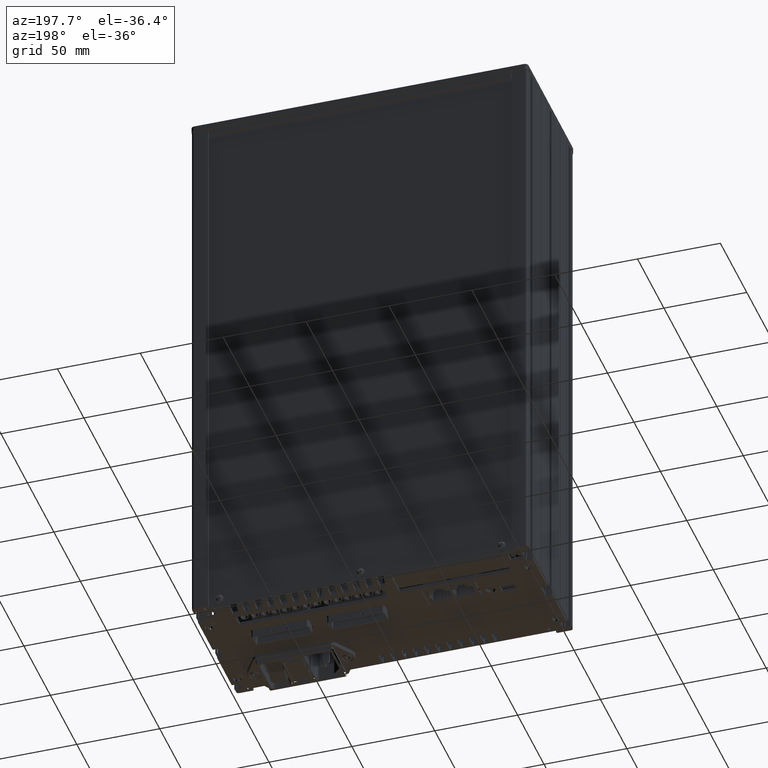
[diagram: clean part render]
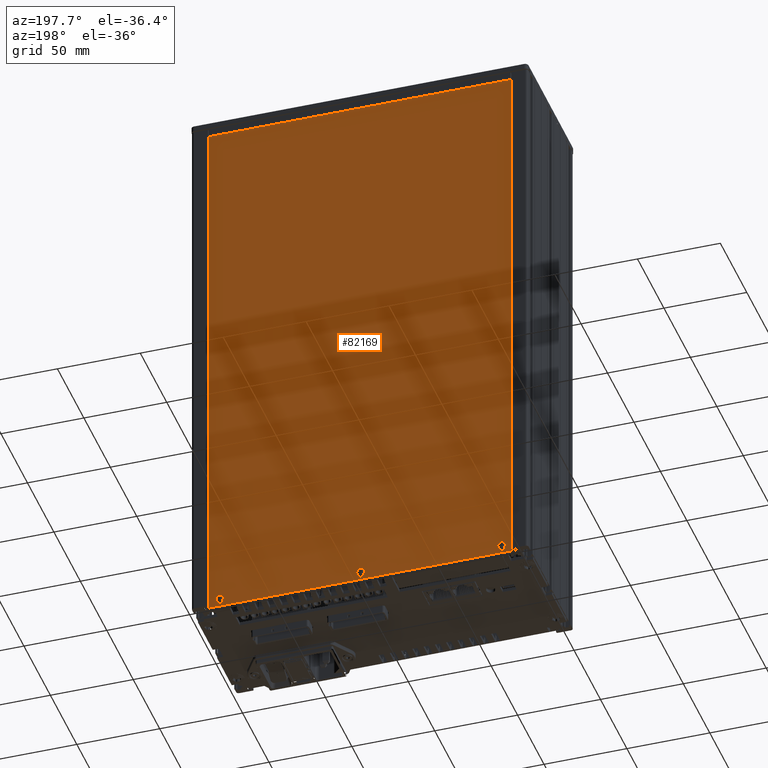
[diagram: same view with one face highlighted and labeled with its STEP entity id]
A machine part, auxiliary view. The second image highlights one B-rep face of the part: STEP entity #82169.
In plain terms, the highlighted planar face has unit normal (0, -1, 0).
Its self-contained STEP definition (entity closure, byte-faithful):
#499 = CIRCLE ( 'NONE', #18347, 1.500000000000001300 ) ;
#1255 = VERTEX_POINT ( 'NONE', #122815 ) ;
#1728 = CARTESIAN_POINT ( 'NONE',  ( 100.0999999999999700, 84.80387273566536500, -334.9000000000001500 ) ) ;
#1777 = FACE_BOUND ( 'NONE', #9589, .T. ) ;
#2273 = AXIS2_PLACEMENT_3D ( 'NONE', #44119, #114871, #53069 ) ;
#2576 = DIRECTION ( 'NONE',  ( 0.0000000000000000000, 1.000000000000000000, 0.0000000000000000000 ) ) ;
#2620 = LINE ( 'NONE', #88655, #52041 ) ;
#2824 = VERTEX_POINT ( 'NONE', #114838 ) ;
#3192 = DIRECTION ( 'NONE',  ( -0.0000000000000000000, -0.0000000000000000000, -1.000000000000000000 ) ) ;
#3480 = CARTESIAN_POINT ( 'NONE',  ( 16.54999999999999400, 84.80387273566536500, -337.1000000000001900 ) ) ;
#3931 = EDGE_CURVE ( 'NONE', #94397, #95491, #115030, .T. ) ;
#4228 = CIRCLE ( 'NONE', #102384, 1.500000000000001300 ) ;
#4514 = CARTESIAN_POINT ( 'NONE',  ( 18.04999999999999700, 84.80387273566536500, -337.1000000000001900 ) ) ;
#4721 = CARTESIAN_POINT ( 'NONE',  ( 7.849999999999967700, 84.80387273566536500, -5.428203230275762800 ) ) ;
#5986 = DIRECTION ( 'NONE',  ( -0.0000000000000000000, -0.0000000000000000000, -1.000000000000000000 ) ) ;
#7232 = AXIS2_PLACEMENT_3D ( 'NONE', #3480, #12870, #33319 ) ;
#7527 = EDGE_CURVE ( 'NONE', #47506, #89076, #4228, .T. ) ;
#9589 = EDGE_LOOP ( 'NONE', ( #124261, #19310, #88443, #125484 ) ) ;
#10443 = VECTOR ( 'NONE', #5986, 1000.000000000000000 ) ;
#10813 = VERTEX_POINT ( 'NONE', #125579 ) ;
#10881 = CARTESIAN_POINT ( 'NONE',  ( 185.1500000000000300, 84.80387273566536500, -337.1000000000001400 ) ) ;
#11703 = AXIS2_PLACEMENT_3D ( 'NONE', #91529, #121837, #101795 ) ;
#12870 = DIRECTION ( 'NONE',  ( 0.0000000000000000000, 1.000000000000000000, 0.0000000000000000000 ) ) ;
#13307 = ORIENTED_EDGE ( 'NONE', *, *, #37824, .T. ) ;
#14414 = LINE ( 'NONE', #124473, #116248 ) ;
#14989 = DIRECTION ( 'NONE',  ( -1.261617073437677600E-014, -0.0000000000000000000, -1.000000000000000000 ) ) ;
#17654 = EDGE_CURVE ( 'NONE', #95491, #49327, #56368, .T. ) ;
#18347 = AXIS2_PLACEMENT_3D ( 'NONE', #83453, #54181, #124891 ) ;
#19310 = ORIENTED_EDGE ( 'NONE', *, *, #56794, .F. ) ;
#19991 = LINE ( 'NONE', #107636, #83685 ) ;
#21547 = VERTEX_POINT ( 'NONE', #27086 ) ;
#22044 = EDGE_CURVE ( 'NONE', #21547, #94397, #130840, .T. ) ;
#22050 = EDGE_CURVE ( 'NONE', #75625, #129456, #90910, .T. ) ;
#22417 = FACE_OUTER_BOUND ( 'NONE', #114650, .T. ) ;
#27086 = CARTESIAN_POINT ( 'NONE',  ( 188.1500000000000300, 84.80387273566536500, -337.1000000000001400 ) ) ;
#28515 = ORIENTED_EDGE ( 'NONE', *, *, #97315, .T. ) ;
#28643 = VERTEX_POINT ( 'NONE', #121192 ) ;
#28784 = DIRECTION ( 'NONE',  ( -1.261617073437681600E-014, 0.0000000000000000000, 1.000000000000000000 ) ) ;
#31000 = CARTESIAN_POINT ( 'NONE',  ( 18.04999999999999700, 84.80387273566536500, -334.9000000000002000 ) ) ;
#33185 = CARTESIAN_POINT ( 'NONE',  ( 16.54999999999999400, 84.80387273566536500, -334.9000000000002000 ) ) ;
#33319 = DIRECTION ( 'NONE',  ( 0.0000000000000000000, 0.0000000000000000000, 1.000000000000000000 ) ) ;
#33521 = EDGE_LOOP ( 'NONE', ( #68153, #33779, #52989, #116576 ) ) ;
#33779 = ORIENTED_EDGE ( 'NONE', *, *, #22044, .F. ) ;
#34408 = EDGE_CURVE ( 'NONE', #84107, #10813, #107096, .T. ) ;
#37824 = EDGE_CURVE ( 'NONE', #28643, #1255, #19991, .T. ) ;
#38332 = VERTEX_POINT ( 'NONE', #67465 ) ;
#38438 = VECTOR ( 'NONE', #46903, 1000.000000000000000 ) ;
#39732 = EDGE_CURVE ( 'NONE', #10813, #71294, #70833, .T. ) ;
#44119 = CARTESIAN_POINT ( 'NONE',  ( 195.3499999999999700, 84.80387273566536500, -340.0000000000001700 ) ) ;
#44376 = CARTESIAN_POINT ( 'NONE',  ( 188.1500000000000900, 84.80387273566536500, -334.9000000000001500 ) ) ;
#44858 = VECTOR ( 'NONE', #3192, 1000.000000000000000 ) ;
#46903 = DIRECTION ( 'NONE',  ( 0.4999999999999955600, -0.0000000000000000000, -0.8660254037844412600 ) ) ;
#47271 = DIRECTION ( 'NONE',  ( 0.0000000000000000000, 0.0000000000000000000, -1.000000000000000000 ) ) ;
#47506 = VERTEX_POINT ( 'NONE', #127672 ) ;
#47872 = CARTESIAN_POINT ( 'NONE',  ( 18.04999999999999700, 84.80387273566536500, -337.1000000000001900 ) ) ;
#48082 = LINE ( 'NONE', #4514, #44858 ) ;
#49327 = VERTEX_POINT ( 'NONE', #44376 ) ;
#49661 = CARTESIAN_POINT ( 'NONE',  ( 185.1500000000000300, 84.80387273566536500, -334.9000000000001500 ) ) ;
#51880 = CARTESIAN_POINT ( 'NONE',  ( 101.5999999999999800, 84.80387273566536500, -334.9000000000001500 ) ) ;
#52041 = VECTOR ( 'NONE', #118928, 1000.000000000000000 ) ;
#52617 = PLANE ( 'NONE',  #2273 ) ;
#52989 = ORIENTED_EDGE ( 'NONE', *, *, #59961, .F. ) ;
#53031 = EDGE_CURVE ( 'NONE', #62739, #85622, #97252, .T. ) ;
#53069 = DIRECTION ( 'NONE',  ( 0.0000000000000000000, -0.0000000000000000000, -1.000000000000000000 ) ) ;
#54181 = DIRECTION ( 'NONE',  ( 0.0000000000000000000, 1.000000000000000000, 0.0000000000000000000 ) ) ;
#55808 = ORIENTED_EDGE ( 'NONE', *, *, #58408, .T. ) ;
#56368 = CIRCLE ( 'NONE', #11703, 1.500000000000001300 ) ;
#56794 = EDGE_CURVE ( 'NONE', #71294, #38332, #499, .T. ) ;
#58270 = CARTESIAN_POINT ( 'NONE',  ( 15.05000000000000800, 84.80387273566536500, -337.1000000000001900 ) ) ;
#58408 = EDGE_CURVE ( 'NONE', #2824, #112072, #2620, .T. ) ;
#59961 = EDGE_CURVE ( 'NONE', #49327, #21547, #71747, .T. ) ;
#60119 = LINE ( 'NONE', #109312, #119055 ) ;
#61101 = VECTOR ( 'NONE', #76343, 1000.000000000000000 ) ;
#61748 = ORIENTED_EDGE ( 'NONE', *, *, #7527, .F. ) ;
#62006 = CARTESIAN_POINT ( 'NONE',  ( 103.0999999999999700, 84.80387273566536500, -337.1000000000001400 ) ) ;
#62525 = ORIENTED_EDGE ( 'NONE', *, *, #89186, .T. ) ;
#62683 = ORIENTED_EDGE ( 'NONE', *, *, #77149, .F. ) ;
#62739 = VERTEX_POINT ( 'NONE', #125479 ) ;
#65585 = CARTESIAN_POINT ( 'NONE',  ( 103.0999999999999700, 84.80387273566536500, -337.1000000000001400 ) ) ;
#66677 = CARTESIAN_POINT ( 'NONE',  ( 11.84999999999997100, 84.80387273566536500, 1.499999999999834800 ) ) ;
#67465 = CARTESIAN_POINT ( 'NONE',  ( 100.0999999999999800, 84.80387273566536500, -337.1000000000001400 ) ) ;
#68153 = ORIENTED_EDGE ( 'NONE', *, *, #3931, .F. ) ;
#68750 = DIRECTION ( 'NONE',  ( 0.0000000000000000000, 1.000000000000000000, 0.0000000000000000000 ) ) ;
#69678 = EDGE_CURVE ( 'NONE', #89076, #75625, #48082, .T. ) ;
#70833 = LINE ( 'NONE', #65585, #10443 ) ;
#71159 = ORIENTED_EDGE ( 'NONE', *, *, #104542, .T. ) ;
#71294 = VERTEX_POINT ( 'NONE', #62006 ) ;
#71747 = LINE ( 'NONE', #115095, #84523 ) ;
#72403 = DIRECTION ( 'NONE',  ( 0.0000000000000000000, 0.0000000000000000000, 1.000000000000000000 ) ) ;
#73693 = DIRECTION ( 'NONE',  ( 0.0000000000000000000, 0.0000000000000000000, 1.000000000000000000 ) ) ;
#75625 = VERTEX_POINT ( 'NONE', #47872 ) ;
#76343 = DIRECTION ( 'NONE',  ( 1.000000000000000000, 0.0000000000000000000, 0.0000000000000000000 ) ) ;
#77149 = EDGE_CURVE ( 'NONE', #129456, #47506, #14414, .T. ) ;
#78177 = FACE_BOUND ( 'NONE', #96723, .T. ) ;
#78784 = ORIENTED_EDGE ( 'NONE', *, *, #69678, .F. ) ;
#82169 = ADVANCED_FACE ( 'NONE', ( #1777, #127541, #78177, #22417 ), #52617, .F. ) ;
#83453 = CARTESIAN_POINT ( 'NONE',  ( 101.5999999999999700, 84.80387273566536500, -337.1000000000001400 ) ) ;
#83475 = CARTESIAN_POINT ( 'NONE',  ( 186.6500000000000300, 84.80387273566536500, -337.1000000000001400 ) ) ;
#83553 = EDGE_CURVE ( 'NONE', #38332, #84107, #60119, .T. ) ;
#83685 = VECTOR ( 'NONE', #117882, 1000.000000000000000 ) ;
#84107 = VERTEX_POINT ( 'NONE', #1728 ) ;
#84523 = VECTOR ( 'NONE', #14989, 1000.000000000000000 ) ;
#84661 = AXIS2_PLACEMENT_3D ( 'NONE', #83475, #2576, #73693 ) ;
#85622 = VERTEX_POINT ( 'NONE', #88919 ) ;
#88443 = ORIENTED_EDGE ( 'NONE', *, *, #39732, .F. ) ;
#88655 = CARTESIAN_POINT ( 'NONE',  ( 7.849999999999967700, 84.80387273566536500, -5.428203230275762800 ) ) ;
#88919 = CARTESIAN_POINT ( 'NONE',  ( 195.3499999999999700, 84.80387273566536500, -5.428203230275762800 ) ) ;
#89076 = VERTEX_POINT ( 'NONE', #31000 ) ;
#89186 = EDGE_CURVE ( 'NONE', #1255, #2824, #90297, .T. ) ;
#89572 = AXIS2_PLACEMENT_3D ( 'NONE', #51880, #68750, #122587 ) ;
#90297 = LINE ( 'NONE', #4721, #117292 ) ;
#90488 = VECTOR ( 'NONE', #47271, 1000.000000000000000 ) ;
#90910 = CIRCLE ( 'NONE', #7232, 1.500000000000001300 ) ;
#91275 = LINE ( 'NONE', #127998, #61101 ) ;
#91529 = CARTESIAN_POINT ( 'NONE',  ( 186.6500000000000300, 84.80387273566536500, -334.9000000000001500 ) ) ;
#94397 = VERTEX_POINT ( 'NONE', #10881 ) ;
#95491 = VERTEX_POINT ( 'NONE', #49661 ) ;
#96630 = CARTESIAN_POINT ( 'NONE',  ( 195.3499999999999700, 84.80387273566536500, -5.428203230275762800 ) ) ;
#96723 = EDGE_LOOP ( 'NONE', ( #62683, #103430, #78784, #61748 ) ) ;
#97252 = LINE ( 'NONE', #96630, #38438 ) ;
#97315 = EDGE_CURVE ( 'NONE', #112072, #62739, #91275, .T. ) ;
#101795 = DIRECTION ( 'NONE',  ( 0.0000000000000000000, 0.0000000000000000000, 1.000000000000000000 ) ) ;
#102170 = VECTOR ( 'NONE', #72403, 1000.000000000000000 ) ;
#102384 = AXIS2_PLACEMENT_3D ( 'NONE', #33185, #102945, #104269 ) ;
#102666 = CARTESIAN_POINT ( 'NONE',  ( 185.1500000000000300, 84.80387273566536500, -337.1000000000001400 ) ) ;
#102945 = DIRECTION ( 'NONE',  ( 0.0000000000000000000, 1.000000000000000000, 0.0000000000000000000 ) ) ;
#103430 = ORIENTED_EDGE ( 'NONE', *, *, #22050, .F. ) ;
#103877 = ORIENTED_EDGE ( 'NONE', *, *, #53031, .T. ) ;
#104269 = DIRECTION ( 'NONE',  ( 0.0000000000000000000, 0.0000000000000000000, 1.000000000000000000 ) ) ;
#104542 = EDGE_CURVE ( 'NONE', #85622, #28643, #104946, .T. ) ;
#104946 = LINE ( 'NONE', #117929, #90488 ) ;
#107096 = CIRCLE ( 'NONE', #89572, 1.500000000000001300 ) ;
#107636 = CARTESIAN_POINT ( 'NONE',  ( 7.849999999999967700, 84.80387273566536500, -340.0000000000001700 ) ) ;
#109312 = CARTESIAN_POINT ( 'NONE',  ( 100.0999999999999800, 84.80387273566536500, -337.1000000000001400 ) ) ;
#112072 = VERTEX_POINT ( 'NONE', #66677 ) ;
#112895 = DIRECTION ( 'NONE',  ( 0.0000000000000000000, 0.0000000000000000000, 1.000000000000000000 ) ) ;
#114650 = EDGE_LOOP ( 'NONE', ( #71159, #13307, #62525, #55808, #28515, #103877 ) ) ;
#114838 = CARTESIAN_POINT ( 'NONE',  ( 7.849999999999967700, 84.80387273566536500, -5.428203230275762800 ) ) ;
#114871 = DIRECTION ( 'NONE',  ( 0.0000000000000000000, -1.000000000000000000, 0.0000000000000000000 ) ) ;
#115030 = LINE ( 'NONE', #102666, #102170 ) ;
#115095 = CARTESIAN_POINT ( 'NONE',  ( 188.1500000000000300, 84.80387273566536500, -337.1000000000001400 ) ) ;
#115916 = DIRECTION ( 'NONE',  ( -0.0000000000000000000, -0.0000000000000000000, 1.000000000000000000 ) ) ;
#116248 = VECTOR ( 'NONE', #112895, 1000.000000000000000 ) ;
#116576 = ORIENTED_EDGE ( 'NONE', *, *, #17654, .F. ) ;
#117292 = VECTOR ( 'NONE', #115916, 1000.000000000000000 ) ;
#117882 = DIRECTION ( 'NONE',  ( -1.000000000000000000, -0.0000000000000000000, -0.0000000000000000000 ) ) ;
#117929 = CARTESIAN_POINT ( 'NONE',  ( 195.3499999999999700, 84.80387273566536500, -5.428203230275762800 ) ) ;
#118928 = DIRECTION ( 'NONE',  ( 0.4999999999999955600, 0.0000000000000000000, 0.8660254037844412600 ) ) ;
#119055 = VECTOR ( 'NONE', #28784, 1000.000000000000000 ) ;
#121192 = CARTESIAN_POINT ( 'NONE',  ( 195.3499999999999700, 84.80387273566536500, -340.0000000000001700 ) ) ;
#121837 = DIRECTION ( 'NONE',  ( 0.0000000000000000000, 1.000000000000000000, 0.0000000000000000000 ) ) ;
#122587 = DIRECTION ( 'NONE',  ( 0.0000000000000000000, 0.0000000000000000000, 1.000000000000000000 ) ) ;
#122815 = CARTESIAN_POINT ( 'NONE',  ( 7.849999999999967700, 84.80387273566536500, -340.0000000000001700 ) ) ;
#124261 = ORIENTED_EDGE ( 'NONE', *, *, #83553, .F. ) ;
#124473 = CARTESIAN_POINT ( 'NONE',  ( 15.04999999999999400, 84.80387273566536500, -337.1000000000001900 ) ) ;
#124891 = DIRECTION ( 'NONE',  ( 0.0000000000000000000, 0.0000000000000000000, 1.000000000000000000 ) ) ;
#125479 = CARTESIAN_POINT ( 'NONE',  ( 191.3499999999999700, 84.80387273566536500, 1.499999999999834800 ) ) ;
#125484 = ORIENTED_EDGE ( 'NONE', *, *, #34408, .F. ) ;
#125579 = CARTESIAN_POINT ( 'NONE',  ( 103.0999999999999700, 84.80387273566536500, -334.9000000000001500 ) ) ;
#127541 = FACE_BOUND ( 'NONE', #33521, .T. ) ;
#127672 = CARTESIAN_POINT ( 'NONE',  ( 15.04999999999999400, 84.80387273566536500, -334.9000000000002000 ) ) ;
#127998 = CARTESIAN_POINT ( 'NONE',  ( 11.84999999999997100, 84.80387273566536500, 1.499999999999834800 ) ) ;
#129456 = VERTEX_POINT ( 'NONE', #58270 ) ;
#130840 = CIRCLE ( 'NONE', #84661, 1.500000000000001300 ) ;